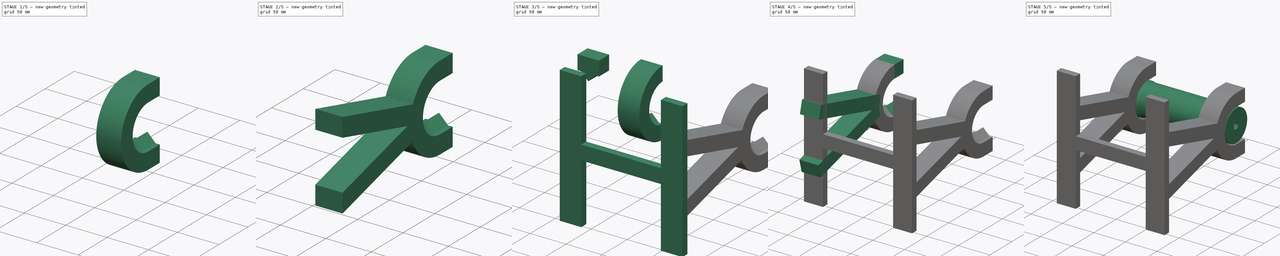
[diagram: build sequence overview — one tinted view per stage of 5, left to right]
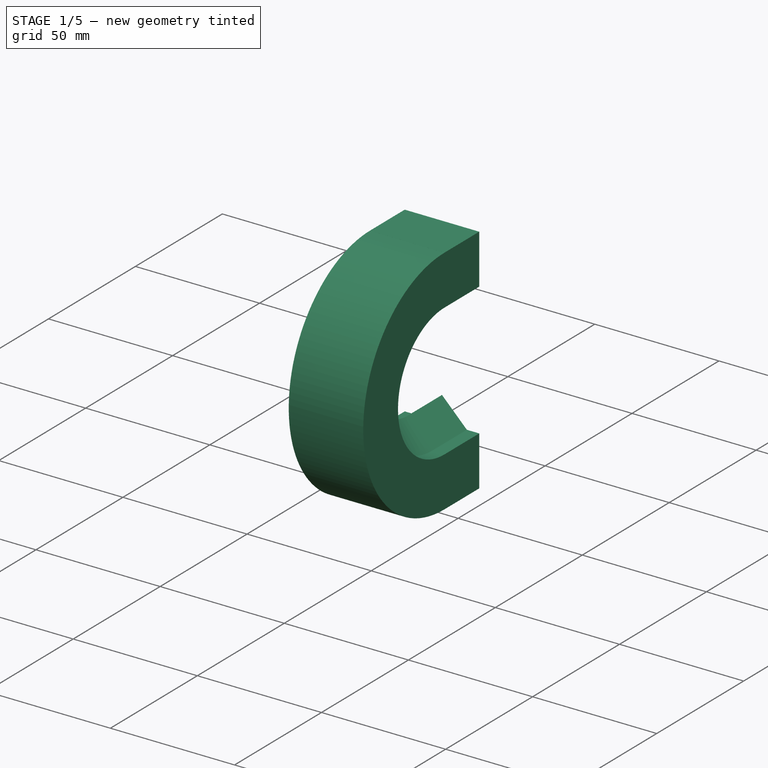
[diagram: stage 1 of 5 — iso view after this stage's code; geometry added in this stage tinted green]
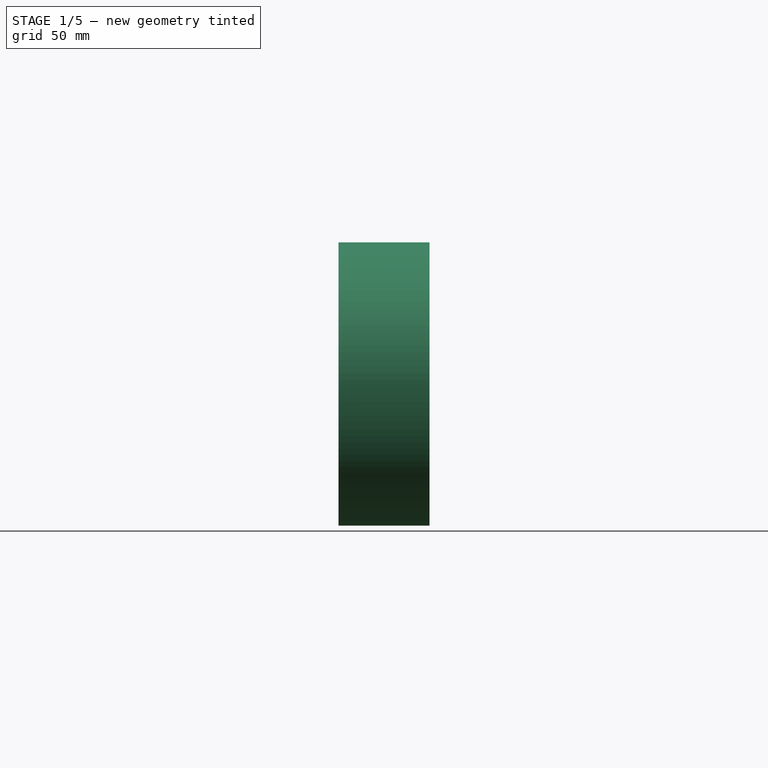
[diagram: stage 1 of 5 — front view after this stage's code; geometry added in this stage tinted green]
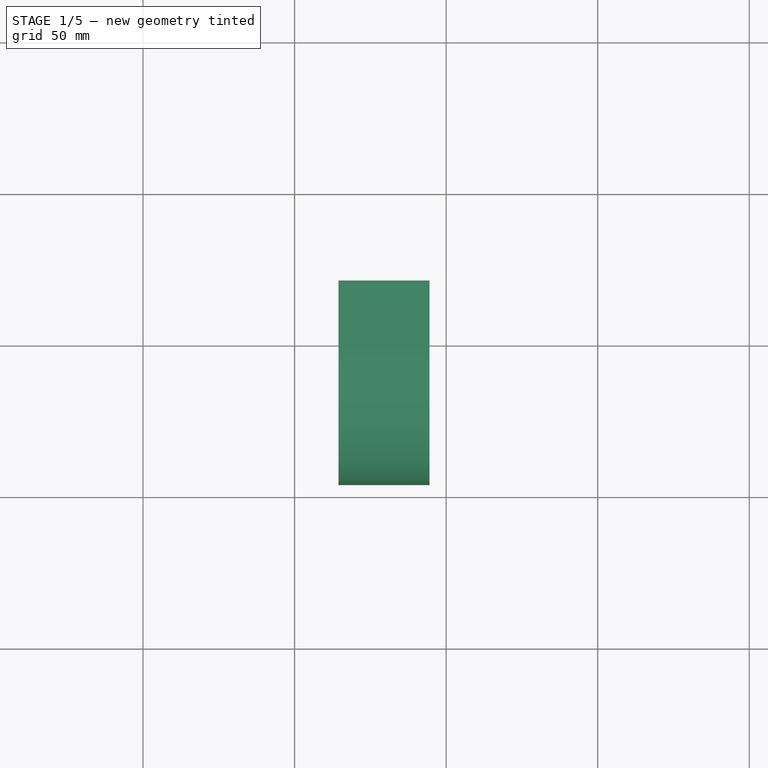
[diagram: stage 1 of 5 — top view after this stage's code; geometry added in this stage tinted green]
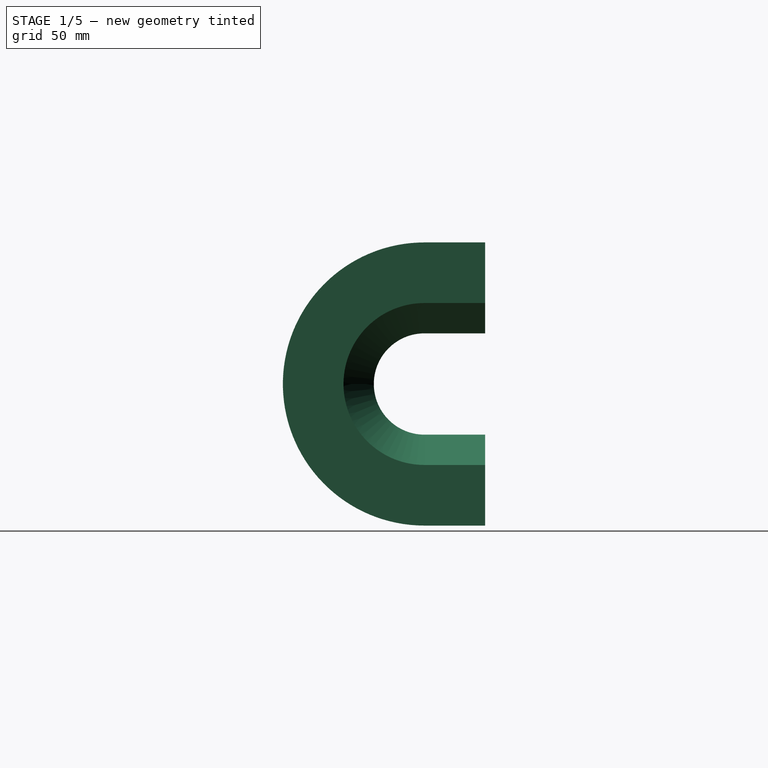
[diagram: stage 1 of 5 — right view after this stage's code; geometry added in this stage tinted green]
FCSTD DOCUMENT  (FreeCAD 0.20R29410 (Git))
Label: holder_big
License: All rights reserved
LicenseURL: http://en.wikipedia.org/wiki/All_rights_reserved
objects: Part::Box×9, Sketcher::SketchObject×7, PartDesign::Body×7, PartDesign::Pad×4, Part::Fuse×4, Part::MultiFuse×4, PartDesign::Revolution×3, Part::Cut×2
note: 47 computed .brp shape members not serialized (recipe doc carries the construction recipe); baked Part::Feature solids carry a one-line shape summary decoded from their .brp

FEATURE [Sketcher::SketchObject] Sketch010
  FullyConstrained = false
  MapMode = 5
  Placement = pos=(0,0,0) rot=(1,0,0;1.5708rad)
  Support = -> [XZ_Plane010]
  sketch-geometry (8):
    g0: LineSegment StartX=-85.5 StartY=26.7083 StartZ=0 EndX=-80.5 EndY=26.7083 EndZ=0
    g1: LineSegment StartX=-80.5 StartY=26.7083 StartZ=0 EndX=-70.5 EndY=16.7083 EndZ=0
    g2: LineSegment StartX=-70.5 StartY=16.7083 StartZ=0 EndX=-60.5 EndY=26.7083 EndZ=0
    g3: LineSegment StartX=-60.5 StartY=26.7083 StartZ=0 EndX=-55.5 EndY=26.7083 EndZ=0
    g4: LineSegment StartX=-85.5 StartY=26.7083 StartZ=0 EndX=-85.5 EndY=46.7083 EndZ=0
    g5: LineSegment StartX=-85.5 StartY=46.7083 StartZ=0 EndX=-55.5 EndY=46.7083 EndZ=0
    g6: LineSegment StartX=-55.5 StartY=46.7083 StartZ=0 EndX=-55.5 EndY=26.7083 EndZ=0
    g7: GeomPoint X=-70.5 Y=14.7083 Z=0
  constraints (19):
    c: Coincident(g2,g1)
    c: Parallel(g0,g-1)
    c: Parallel(g3,g-1)
    c: DistanceX(g0,g1) = 5
    c: DistanceX(g2,g3) = 5
    c: DistanceX(g1,g1) = 10
    c: DistanceX(g1,g2) = 10
    c: Coincident(g3,g2)
    c: Coincident(g1,g0)
    c: DistanceY(g1,g2) = 10
    c: DistanceY(g1,g0) = 10
    c: Coincident(g4,g0)
    c: Coincident(g6,g5)
    c: Coincident(g6,g3)
    c: Parallel(g4,g-2)
    c: Parallel(g5,g-1)
    c: Coincident(g5,g4)
    c: Parallel(g6,g-2)
    c: DistanceY(g3,g5) = 20
FEATURE [PartDesign::Revolution] Revolution004
  Angle = 180
  Axis = (1,0,0)
  Base = (0,0,0)
  Placement = pos=(0,0,0) rot=(1,0,0;1.5708rad)
  Profile = -> Sketch010
  ReferenceAxis = -> X_Axis010
FEATURE [PartDesign::Body] Body010
  Group = -> [Sketch010,Revolution004]
  Origin = -> Origin010
  Tip = -> Revolution004
FEATURE [Sketcher::SketchObject] Sketch011
  FullyConstrained = false
  MapMode = 5
  Placement = pos=(0,0,0) rot=(1,0,0;1.5708rad)
  Support = -> [XZ_Plane011]
  sketch-geometry (7):
    g0: LineSegment StartX=-160.154 StartY=40.5326 StartZ=0 EndX=-130.154 EndY=40.5326 EndZ=0
    g1: LineSegment StartX=-130.154 StartY=40.5326 StartZ=0 EndX=-130.154 EndY=20.5326 EndZ=0
    g2: LineSegment StartX=-130.154 StartY=20.5326 StartZ=0 EndX=-135.154 EndY=20.5326 EndZ=0
    g3: LineSegment StartX=-135.154 StartY=20.5326 StartZ=0 EndX=-145.154 EndY=10.5326 EndZ=0
    g4: LineSegment StartX=-145.154 StartY=10.5326 StartZ=0 EndX=-155.154 EndY=20.5326 EndZ=0
    g5: LineSegment StartX=-155.154 StartY=20.5326 StartZ=0 EndX=-160.154 EndY=20.5326 EndZ=0
    g6: LineSegment StartX=-160.154 StartY=20.5326 StartZ=0 EndX=-160.154 EndY=40.5326 EndZ=0
  constraints (19):
    c: Parallel(g0,g-1)
    c: Parallel(g5,g-1)
    c: Parallel(g2,g-1)
    c: Parallel(g6,g-2)
    c: Parallel(g1,g-2)
    c: Coincident(g6,g0)
    c: Coincident(g5,g6)
    c: Coincident(g3,g2)
    c: Coincident(g2,g1)
    c: Coincident(g5,g4)
    c: DistanceY(g1,g0) = 20
    c: DistanceY(g5,g0) = 20
    c: DistanceX(g5,g4) = 5
    c: DistanceX(g2,g1) = 5
    c: DistanceX(g4,g4) = 10
    c: DistanceX(g3,g2) = 10
    c: Coincident(g3,g4)
    c: DistanceY(g3,g2) = 10
    c: Coincident(g1,g0)
FEATURE [PartDesign::Pad] Pad006
  Direction = (0,-1,2e-16)
  Length = 20
  Length2 = 10
  Placement = pos=(0,0,0) rot=(1,0,0;1.5708rad)
  Profile = -> Sketch011
  ReferenceAxis = -> Sketch011 [N_Axis]
  Type = 0
FEATURE [PartDesign::Body] Body011
  Group = -> [Sketch011,Pad006]
  Origin = -> Origin011
  Placement = pos=(-215.65,20,-6.18) rot=(0,1,0;3.14159rad)
  Tip = -> Pad006
FEATURE [Part::Fuse] Fusion017
  Base = -> Body010
  Tool = -> Body011
FEATURE [Sketcher::SketchObject] Sketch012
  FullyConstrained = false
  MapMode = 5
  Placement = pos=(0,0,0) rot=(1,0,0;1.5708rad)
  Support = -> [XZ_Plane012]
  sketch-geometry (7):
    g0: LineSegment StartX=-160.154 StartY=40.5326 StartZ=0 EndX=-130.154 EndY=40.5326 EndZ=0
    g1: LineSegment StartX=-130.154 StartY=40.5326 StartZ=0 EndX=-130.154 EndY=20.5326 EndZ=0
    g2: LineSegment StartX=-130.154 StartY=20.5326 StartZ=0 EndX=-135.154 EndY=20.5326 EndZ=0
    g3: LineSegment StartX=-135.154 StartY=20.5326 StartZ=0 EndX=-145.154 EndY=10.5326 EndZ=0
    g4: LineSegment StartX=-145.154 StartY=10.5326 StartZ=0 EndX=-155.154 EndY=20.5326 EndZ=0
    g5: LineSegment StartX=-155.154 StartY=20.5326 StartZ=0 EndX=-160.154 EndY=20.5326 EndZ=0
    g6: LineSegment StartX=-160.154 StartY=20.5326 StartZ=0 EndX=-160.154 EndY=40.5326 EndZ=0
  constraints (19):
    c: Parallel(g0,g-1)
    c: Parallel(g5,g-1)
    c: Parallel(g2,g-1)
    c: Parallel(g6,g-2)
    c: Parallel(g1,g-2)
    c: Coincident(g6,g0)
    c: Coincident(g5,g6)
    c: Coincident(g3,g2)
    c: Coincident(g2,g1)
    c: Coincident(g5,g4)
    c: DistanceY(g1,g0) = 20
    c: DistanceY(g5,g0) = 20
    c: DistanceX(g5,g4) = 5
    c: DistanceX(g2,g1) = 5
    c: DistanceX(g4,g4) = 10
    c: DistanceX(g3,g2) = 10
    c: Coincident(g3,g4)
    c: DistanceY(g3,g2) = 10
    c: Coincident(g1,g0)
FEATURE [PartDesign::Pad] Pad007
  Direction = (0,-1,-2e-16)
  Length = 20
  Length2 = 10
  Placement = pos=(0,0,0) rot=(1,0,0;1.5708rad)
  Profile = -> Sketch012
  ReferenceAxis = -> Sketch012 [N_Axis]
  Type = 0
FEATURE [PartDesign::Body] Body012
  Group = -> [Sketch012,Pad007]
  Origin = -> Origin012
  Placement = pos=(74.65,20,6.18) rot=(0,0,1;0rad)
  Tip = -> Pad007
FEATURE [Part::Fuse] Fusion018
  Base = -> Body012
  Tool = -> Fusion017
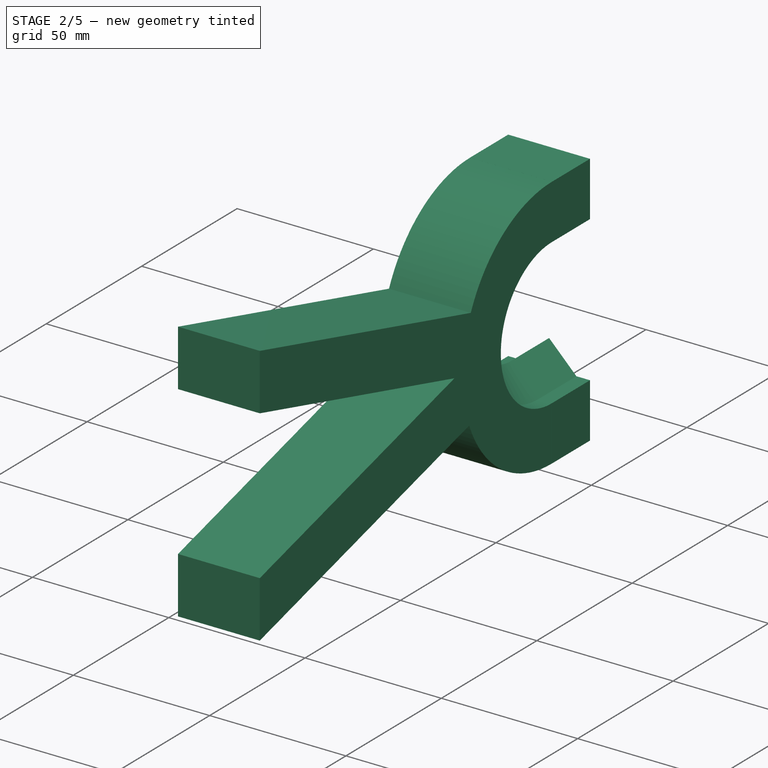
[diagram: stage 2 of 5 — iso view after this stage's code; geometry added in this stage tinted green]
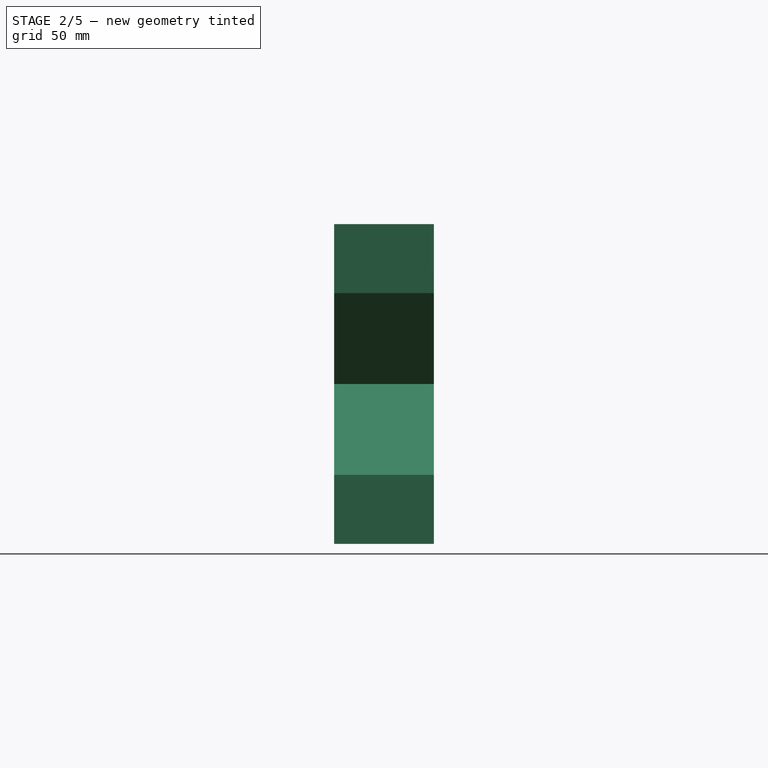
[diagram: stage 2 of 5 — front view after this stage's code; geometry added in this stage tinted green]
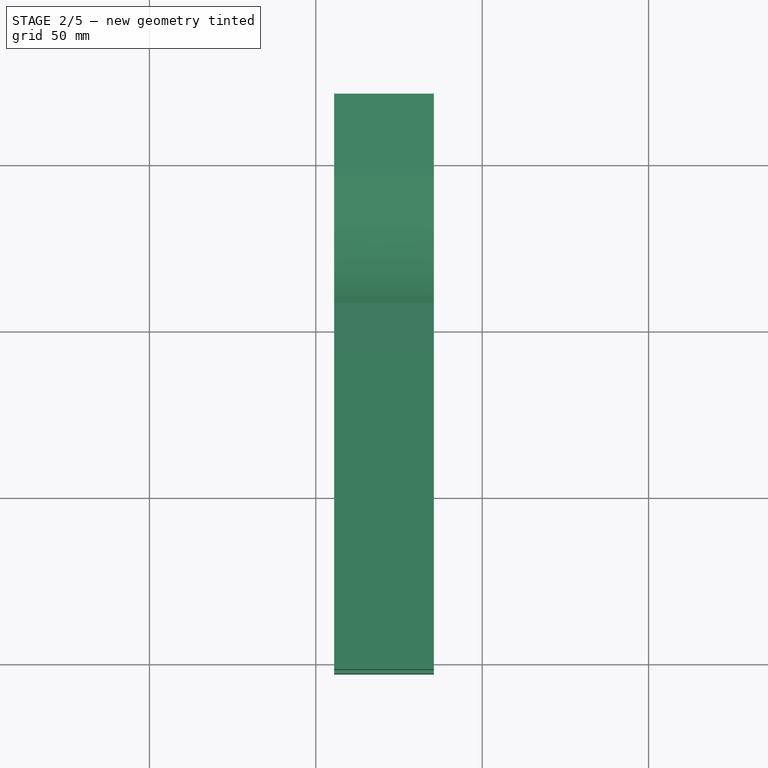
[diagram: stage 2 of 5 — top view after this stage's code; geometry added in this stage tinted green]
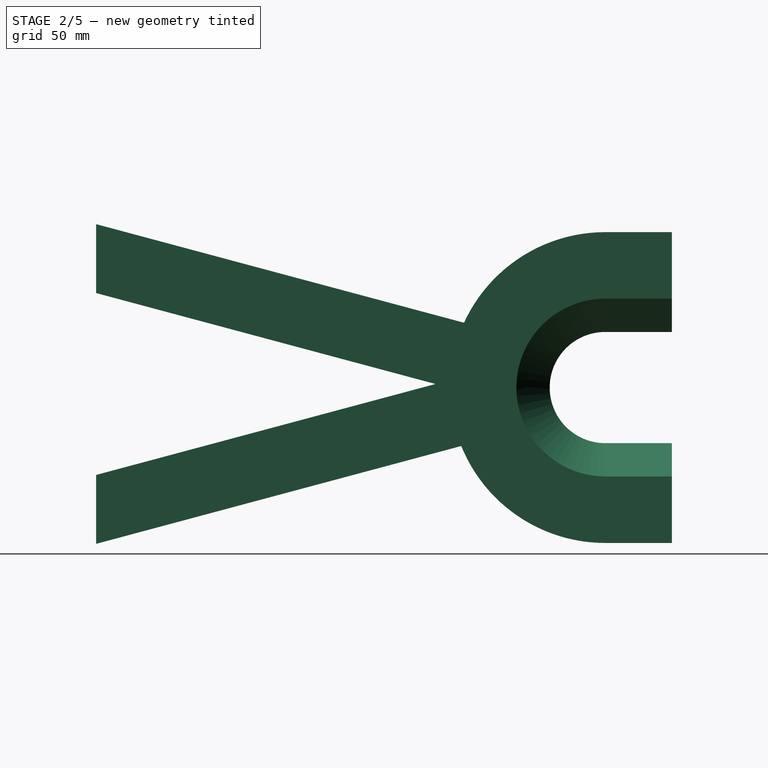
[diagram: stage 2 of 5 — right view after this stage's code; geometry added in this stage tinted green]
FEATURE [Part::Box] Box016  label="Cube016"
  AttacherType = Attacher::AttachEngine3D
  Height = 20
  Length = 30
  Placement = pos=(-85.5,-171.293,33.2952) rot=(-1,0,0;0.261799rad)
  Width = 140
FEATURE [Part::Box] Box017  label="Cube017"
  AttacherType = Attacher::AttachEngine3D
  Height = 20
  Length = 30
  Placement = pos=(-85.5,-167.263,-50.7868) rot=(1,0,0;0.261799rad)
  Width = 140
FEATURE [Part::Box] Box018  label="Cube018"
  AttacherType = Attacher::AttachEngine3D
  Height = 220
  Length = 40
  Placement = pos=(-94,-173,-109) rot=(0,0,1;0rad)
  Width = 20
FEATURE [Part::MultiFuse] Fusion019
  Shapes = -> [Fusion018,Box017,Box016]
FEATURE [Part::Cut] Cut002
  Base = -> Fusion019
  Placement = pos=(141,0,0) rot=(0,0,1;0rad)
  Tool = -> Box018
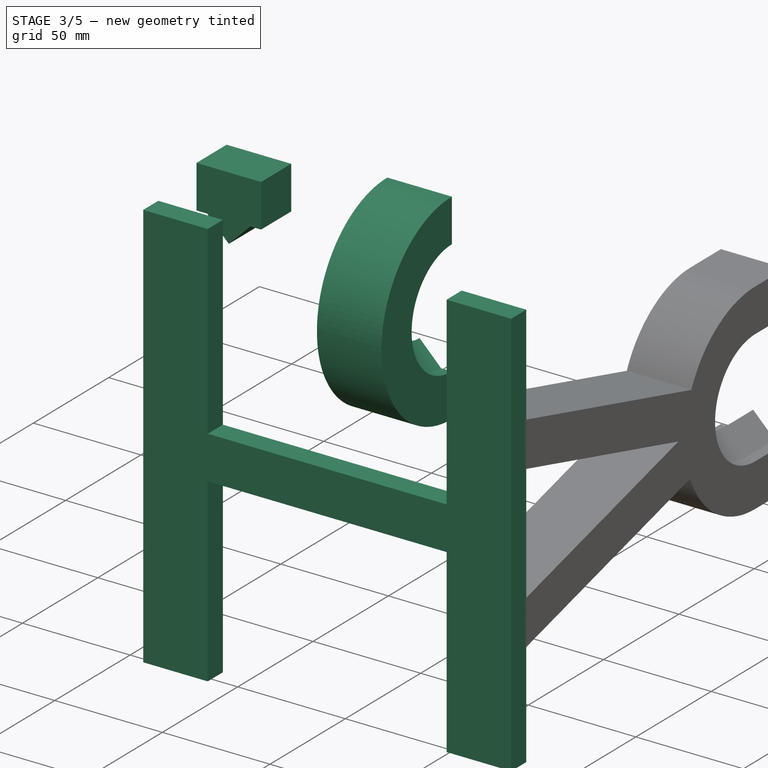
[diagram: stage 3 of 5 — iso view after this stage's code; geometry added in this stage tinted green]
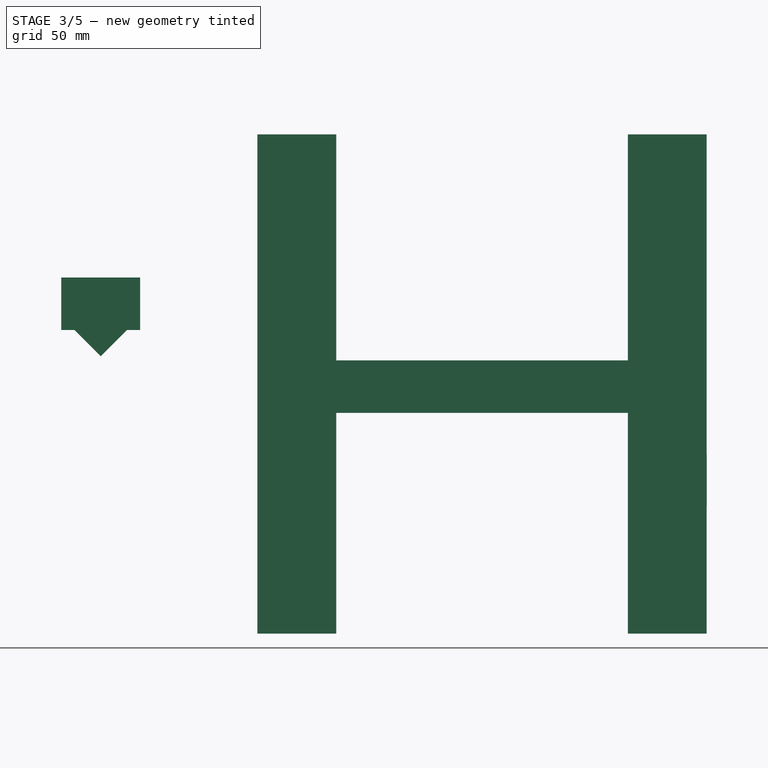
[diagram: stage 3 of 5 — front view after this stage's code; geometry added in this stage tinted green]
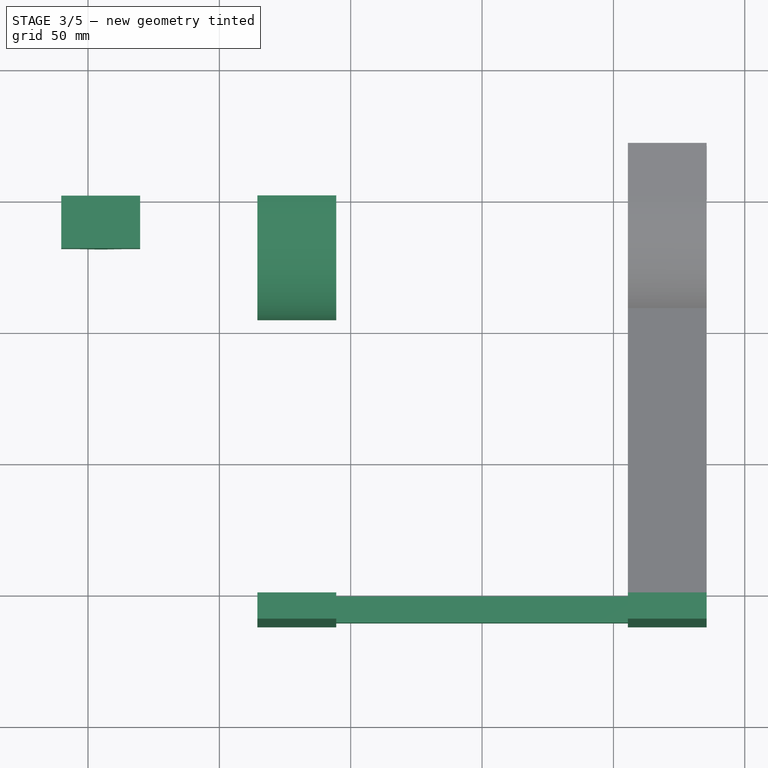
[diagram: stage 3 of 5 — top view after this stage's code; geometry added in this stage tinted green]
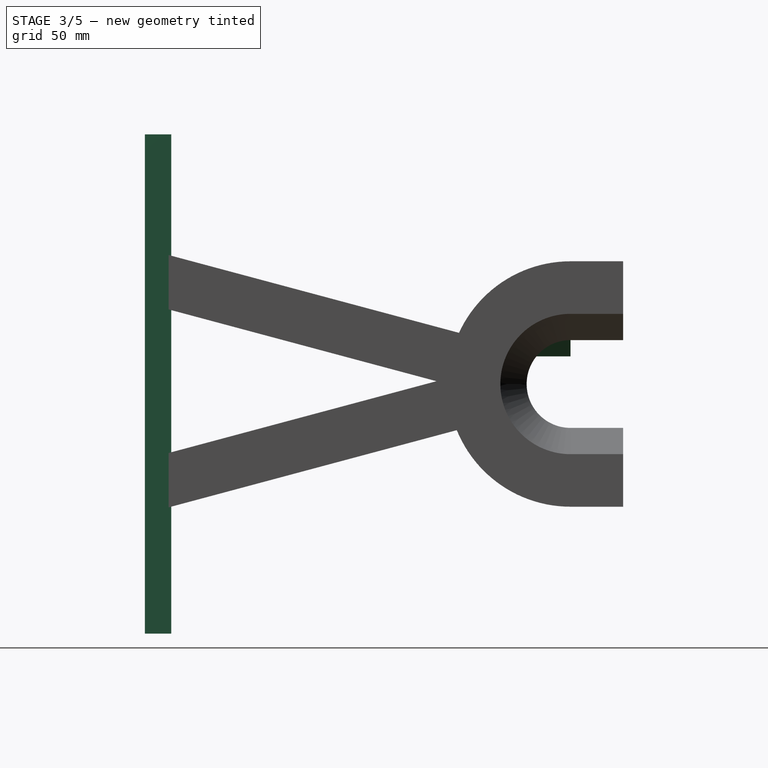
[diagram: stage 3 of 5 — right view after this stage's code; geometry added in this stage tinted green]
FEATURE [PartDesign::Body] Body  label="inner"
  Group = -> [Sketch,Revolution]
  Origin = -> Origin
  Tip = -> Revolution
FEATURE [Part::Box] Box004  label="Cube004"
  AttacherType = Attacher::AttachEngine3D
  Height = 190
  Length = 30
  Placement = pos=(-85.5,-173,-95) rot=(0,0,1;0rad)
  Width = 10
FEATURE [Part::Box] Box009  label="Cube009"
  AttacherType = Attacher::AttachEngine3D
  Height = 190
  Length = 30
  Placement = pos=(55.5,-173,-95) rot=(0,0,1;0rad)
  Width = 10
FEATURE [Part::Box] Box011  label="Cube011"
  AttacherType = Attacher::AttachEngine3D
  Height = 20
  Length = 130
  Placement = pos=(-63,-173,-11) rot=(0,0,1;0rad)
  Width = 10
FEATURE [Sketcher::SketchObject] Sketch007
  FullyConstrained = false
  MapMode = 5
  Placement = pos=(0,0,0) rot=(1,0,0;1.5708rad)
  Support = -> [XZ_Plane007]
  sketch-geometry (8):
    g0: LineSegment StartX=-85.5 StartY=26.7083 StartZ=0 EndX=-80.5 EndY=26.7083 EndZ=0
    g1: LineSegment StartX=-80.5 StartY=26.7083 StartZ=0 EndX=-70.5 EndY=16.7083 EndZ=0
    g2: LineSegment StartX=-70.5 StartY=16.7083 StartZ=0 EndX=-60.5 EndY=26.7083 EndZ=0
    g3: LineSegment StartX=-60.5 StartY=26.7083 StartZ=0 EndX=-55.5 EndY=26.7083 EndZ=0
    g4: LineSegment StartX=-85.5 StartY=26.7083 StartZ=0 EndX=-85.5 EndY=46.7083 EndZ=0
    g5: LineSegment StartX=-85.5 StartY=46.7083 StartZ=0 EndX=-55.5 EndY=46.7083 EndZ=0
    g6: LineSegment StartX=-55.5 StartY=46.7083 StartZ=0 EndX=-55.5 EndY=26.7083 EndZ=0
    g7: GeomPoint X=-70.5 Y=14.7083 Z=0
  constraints (19):
    c: Coincident(g2,g1)
    c: Parallel(g0,g-1)
    c: Parallel(g3,g-1)
    c: DistanceX(g0,g1) = 5
    c: DistanceX(g2,g3) = 5
    c: DistanceX(g1,g1) = 10
    c: DistanceX(g1,g2) = 10
    c: Coincident(g3,g2)
    c: Coincident(g1,g0)
    c: DistanceY(g1,g2) = 10
    c: DistanceY(g1,g0) = 10
    c: Coincident(g4,g0)
    c: Coincident(g6,g5)
    c: Coincident(g6,g3)
    c: Parallel(g4,g-2)
    c: Parallel(g5,g-1)
    c: Coincident(g5,g4)
    c: Parallel(g6,g-2)
    c: DistanceY(g3,g5) = 20
FEATURE [PartDesign::Revolution] Revolution003
  Angle = 180
  Axis = (1,0,0)
  Base = (0,0,0)
  Placement = pos=(0,0,0) rot=(1,0,0;1.5708rad)
  Profile = -> Sketch007
  ReferenceAxis = -> X_Axis007
FEATURE [Sketcher::SketchObject] Sketch009
  FullyConstrained = false
  MapMode = 5
  Placement = pos=(0,0,0) rot=(1,0,0;1.5708rad)
  Support = -> [XZ_Plane009]
  sketch-geometry (7):
    g0: LineSegment StartX=-160.154 StartY=40.5326 StartZ=0 EndX=-130.154 EndY=40.5326 EndZ=0
    g1: LineSegment StartX=-130.154 StartY=40.5326 StartZ=0 EndX=-130.154 EndY=20.5326 EndZ=0
    g2: LineSegment StartX=-130.154 StartY=20.5326 StartZ=0 EndX=-135.154 EndY=20.5326 EndZ=0
    g3: LineSegment StartX=-135.154 StartY=20.5326 StartZ=0 EndX=-145.154 EndY=10.5326 EndZ=0
    g4: LineSegment StartX=-145.154 StartY=10.5326 StartZ=0 EndX=-155.154 EndY=20.5326 EndZ=0
    g5: LineSegment StartX=-155.154 StartY=20.5326 StartZ=0 EndX=-160.154 EndY=20.5326 EndZ=0
    g6: LineSegment StartX=-160.154 StartY=20.5326 StartZ=0 EndX=-160.154 EndY=40.5326 EndZ=0
  constraints (19):
    c: Parallel(g0,g-1)
    c: Parallel(g5,g-1)
    c: Parallel(g2,g-1)
    c: Parallel(g6,g-2)
    c: Parallel(g1,g-2)
    c: Coincident(g6,g0)
    c: Coincident(g5,g6)
    c: Coincident(g3,g2)
    c: Coincident(g2,g1)
    c: Coincident(g5,g4)
    c: DistanceY(g1,g0) = 20
    c: DistanceY(g5,g0) = 20
    c: DistanceX(g5,g4) = 5
    c: DistanceX(g2,g1) = 5
    c: DistanceX(g4,g4) = 10
    c: DistanceX(g3,g2) = 10
    c: Coincident(g3,g4)
    c: DistanceY(g3,g2) = 10
    c: Coincident(g1,g0)
FEATURE [PartDesign::Pad] Pad005
  Direction = (0,-1,-2e-16)
  Length = 20
  Length2 = 10
  Placement = pos=(0,0,0) rot=(1,0,0;1.5708rad)
  Profile = -> Sketch009
  ReferenceAxis = -> Sketch009 [N_Axis]
  Type = 0
FEATURE [Part::MultiFuse] Fusion
  Placement = pos=(0,11,0) rot=(0,0,1;0rad)
  Shapes = -> [Box011,Box009,Box004]
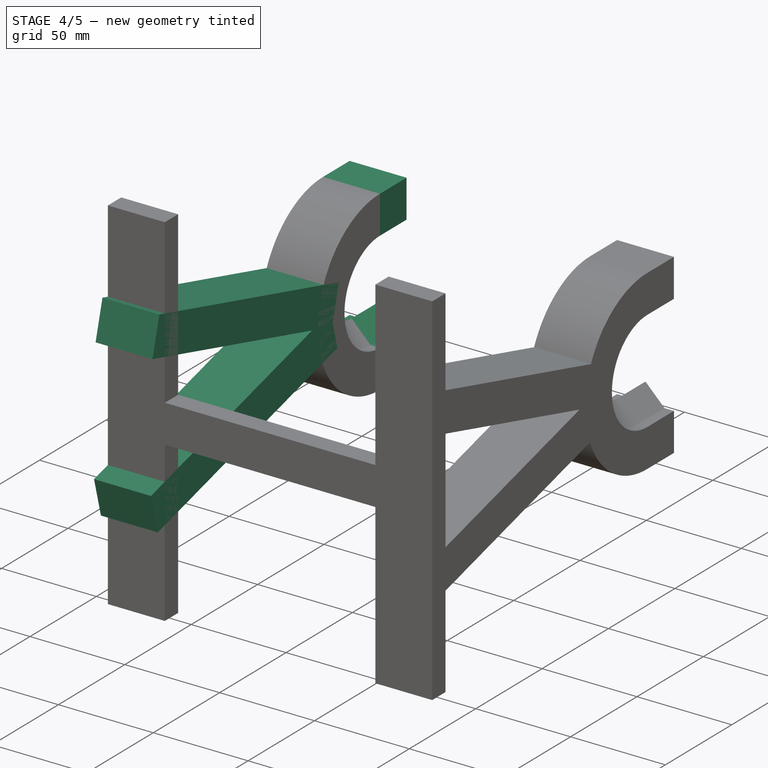
[diagram: stage 4 of 5 — iso view after this stage's code; geometry added in this stage tinted green]
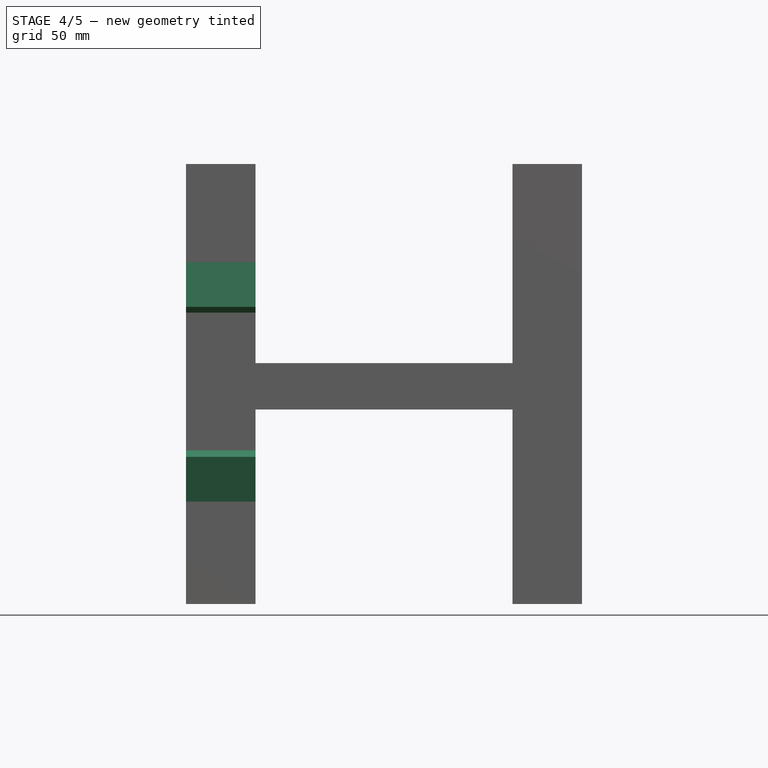
[diagram: stage 4 of 5 — front view after this stage's code; geometry added in this stage tinted green]
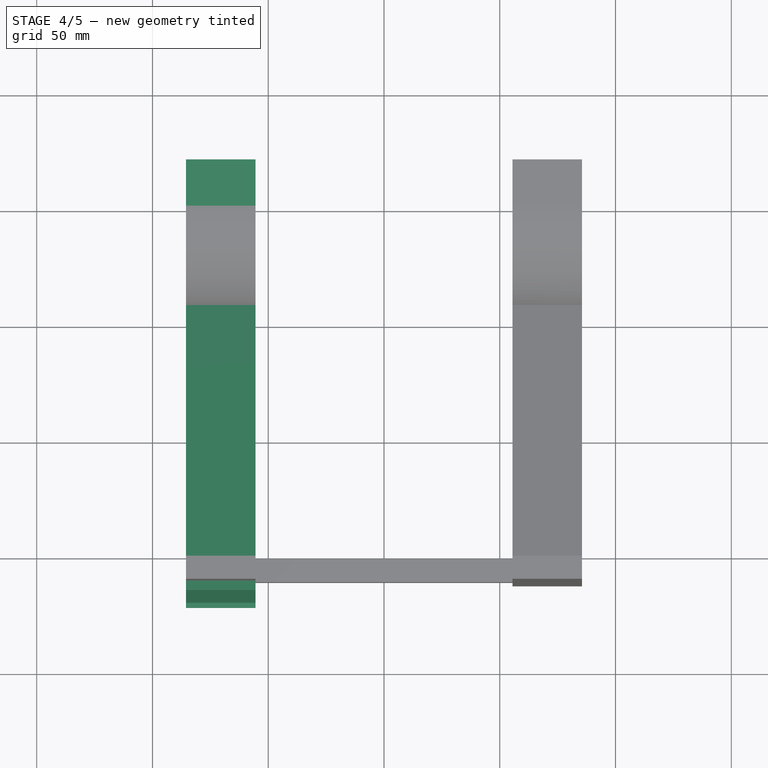
[diagram: stage 4 of 5 — top view after this stage's code; geometry added in this stage tinted green]
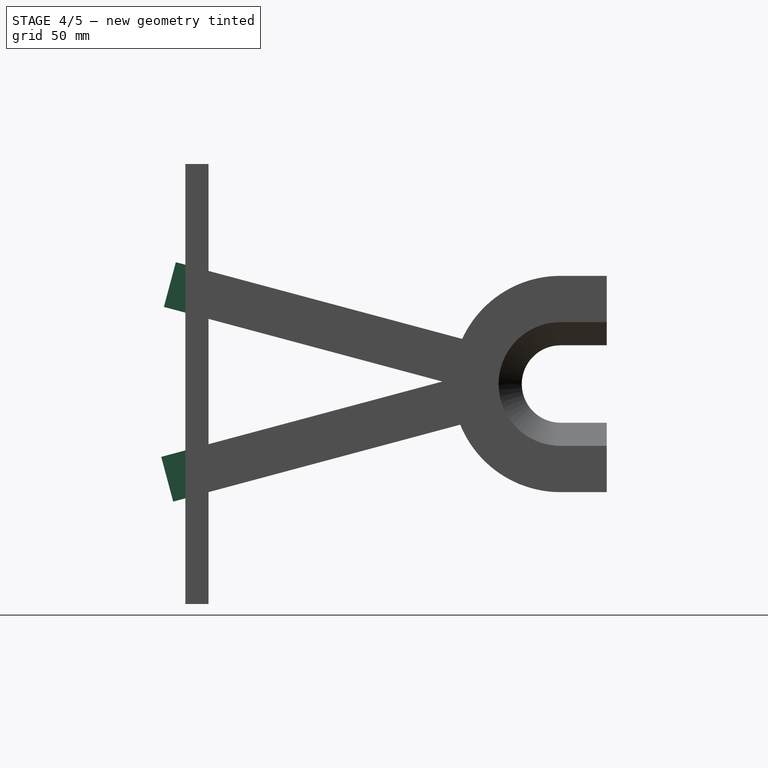
[diagram: stage 4 of 5 — right view after this stage's code; geometry added in this stage tinted green]
FEATURE [Part::Box] Box013  label="Cube013"
  AttacherType = Attacher::AttachEngine3D
  Height = 20
  Length = 30
  Placement = pos=(-85.5,-171.293,33.2952) rot=(-1,0,0;0.261799rad)
  Width = 140
FEATURE [Part::Box] Box014  label="Cube014"
  AttacherType = Attacher::AttachEngine3D
  Height = 20
  Length = 30
  Placement = pos=(-85.5,-167.263,-50.7868) rot=(1,0,0;0.261799rad)
  Width = 140
FEATURE [PartDesign::Body] Body007
  Group = -> [Sketch007,Revolution003]
  Origin = -> Origin007
  Tip = -> Revolution003
FEATURE [Sketcher::SketchObject] Sketch008
  FullyConstrained = false
  MapMode = 5
  Placement = pos=(0,0,0) rot=(1,0,0;1.5708rad)
  Support = -> [XZ_Plane008]
  sketch-geometry (7):
    g0: LineSegment StartX=-160.154 StartY=40.5326 StartZ=0 EndX=-130.154 EndY=40.5326 EndZ=0
    g1: LineSegment StartX=-130.154 StartY=40.5326 StartZ=0 EndX=-130.154 EndY=20.5326 EndZ=0
    g2: LineSegment StartX=-130.154 StartY=20.5326 StartZ=0 EndX=-135.154 EndY=20.5326 EndZ=0
    g3: LineSegment StartX=-135.154 StartY=20.5326 StartZ=0 EndX=-145.154 EndY=10.5326 EndZ=0
    g4: LineSegment StartX=-145.154 StartY=10.5326 StartZ=0 EndX=-155.154 EndY=20.5326 EndZ=0
    g5: LineSegment StartX=-155.154 StartY=20.5326 StartZ=0 EndX=-160.154 EndY=20.5326 EndZ=0
    g6: LineSegment StartX=-160.154 StartY=20.5326 StartZ=0 EndX=-160.154 EndY=40.5326 EndZ=0
  constraints (19):
    c: Parallel(g0,g-1)
    c: Parallel(g5,g-1)
    c: Parallel(g2,g-1)
    c: Parallel(g6,g-2)
    c: Parallel(g1,g-2)
    c: Coincident(g6,g0)
    c: Coincident(g5,g6)
    c: Coincident(g3,g2)
    c: Coincident(g2,g1)
    c: Coincident(g5,g4)
    c: DistanceY(g1,g0) = 20
    c: DistanceY(g5,g0) = 20
    c: DistanceX(g5,g4) = 5
    c: DistanceX(g2,g1) = 5
    c: DistanceX(g4,g4) = 10
    c: DistanceX(g3,g2) = 10
    c: Coincident(g3,g4)
    c: DistanceY(g3,g2) = 10
    c: Coincident(g1,g0)
FEATURE [PartDesign::Pad] Pad004
  Direction = (0,-1,2e-16)
  Length = 20
  Length2 = 10
  Placement = pos=(0,0,0) rot=(1,0,0;1.5708rad)
  Profile = -> Sketch008
  ReferenceAxis = -> Sketch008 [N_Axis]
  Type = 0
FEATURE [PartDesign::Body] Body008
  Group = -> [Sketch008,Pad004]
  Origin = -> Origin008
  Placement = pos=(-215.65,20,-6.18) rot=(0,1,0;3.14159rad)
  Tip = -> Pad004
FEATURE [Part::Fuse] Fusion010
  Base = -> Body007
  Tool = -> Body008
FEATURE [PartDesign::Body] Body009
  Group = -> [Sketch009,Pad005]
  Origin = -> Origin009
  Placement = pos=(74.65,20,6.18) rot=(0,0,1;0rad)
  Tip = -> Pad005
FEATURE [Part::Fuse] Fusion011
  Base = -> Body009
  Tool = -> Fusion010
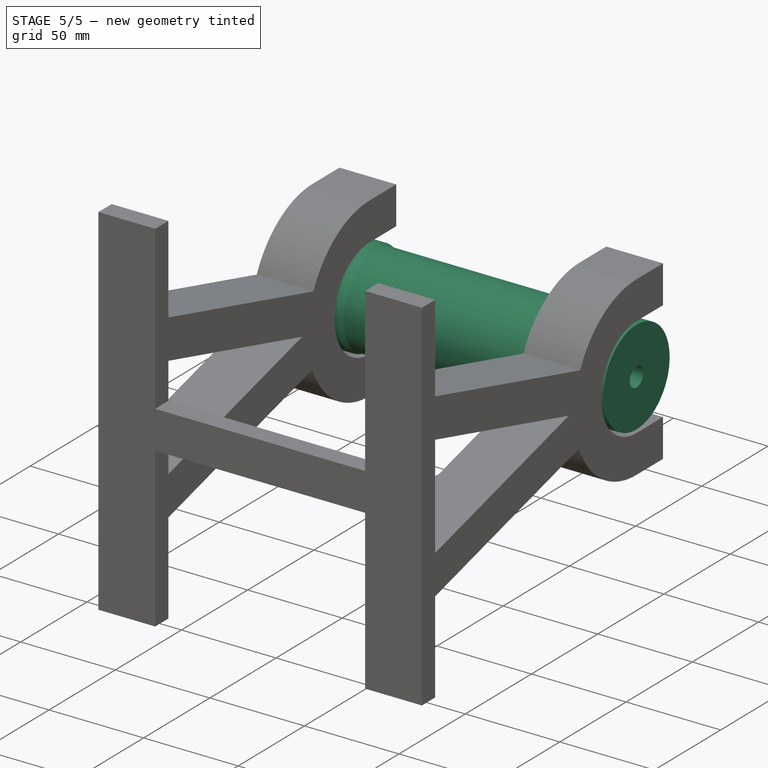
[diagram: stage 5 of 5 — iso view after this stage's code; geometry added in this stage tinted green]
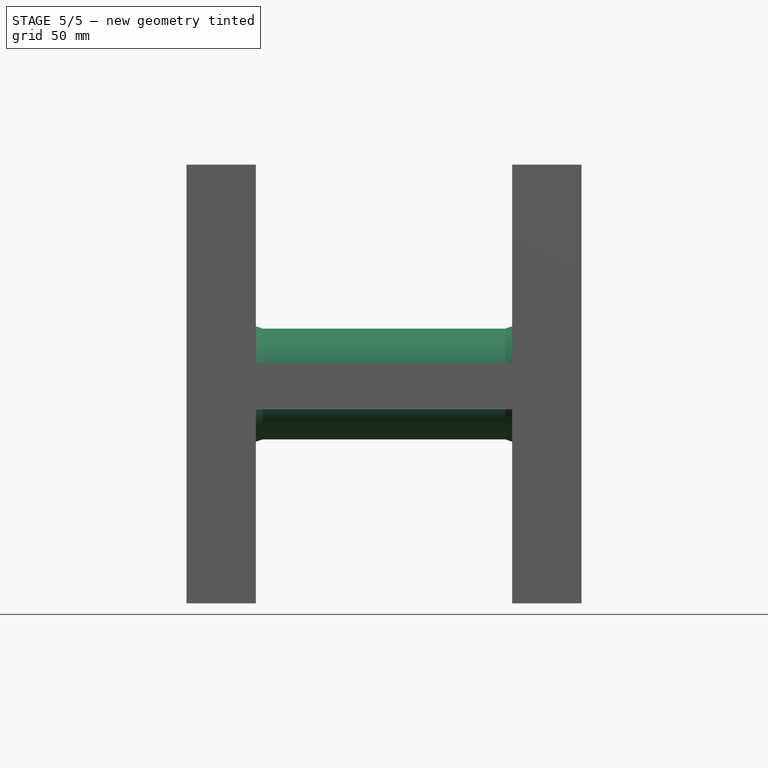
[diagram: stage 5 of 5 — front view after this stage's code; geometry added in this stage tinted green]
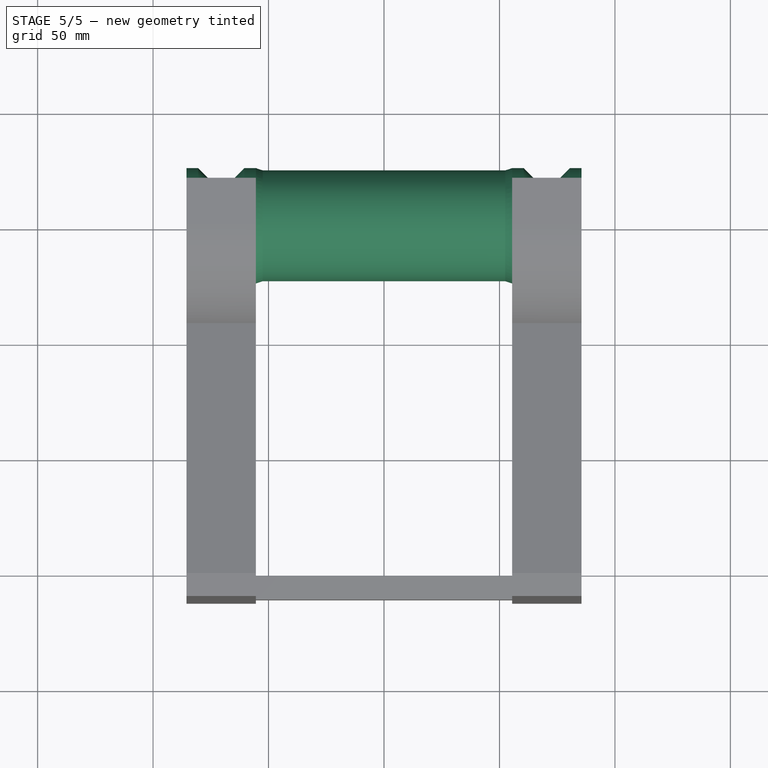
[diagram: stage 5 of 5 — top view after this stage's code; geometry added in this stage tinted green]
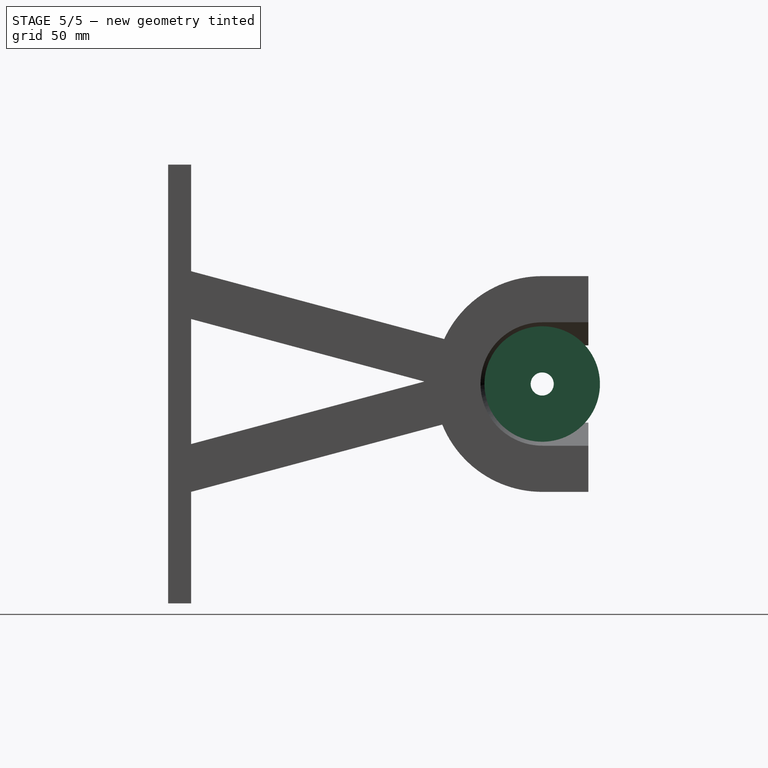
[diagram: stage 5 of 5 — right view after this stage's code; geometry added in this stage tinted green]
FEATURE [Sketcher::SketchObject] Sketch
  FullyConstrained = true
  MapMode = 5
  Placement = pos=(0,0,0) rot=(1,0,0;1.5708rad)
  Support = -> [XZ_Plane]
  sketch-geometry (14):
    g0: LineSegment StartX=-52.5 StartY=24 StartZ=0 EndX=52.5 EndY=24 EndZ=0
    g1: LineSegment StartX=-60.5 StartY=25 StartZ=0 EndX=-55.5 EndY=25 EndZ=0
    g2: LineSegment StartX=-55.5 StartY=25 StartZ=0 EndX=-52.5 EndY=24 EndZ=0
    g3: LineSegment StartX=55.5 StartY=25 StartZ=0 EndX=60.5 EndY=25 EndZ=0
    g4: LineSegment StartX=52.5 StartY=24 StartZ=0 EndX=55.5 EndY=25 EndZ=0
    g5: LineSegment StartX=-60.5 StartY=25 StartZ=0 EndX=-70.5 EndY=15 EndZ=0
    g6: LineSegment StartX=-70.5 StartY=15 StartZ=0 EndX=-80.5 EndY=25 EndZ=0
    g7: LineSegment StartX=-80.5 StartY=25 StartZ=0 EndX=-85.5 EndY=25 EndZ=0
    g8: LineSegment StartX=-85.5 StartY=25 StartZ=0 EndX=-85.5 EndY=5 EndZ=0
    g9: LineSegment StartX=60.5 StartY=25 StartZ=0 EndX=70.5 EndY=15 EndZ=0
    g10: LineSegment StartX=70.5 StartY=15 StartZ=0 EndX=80.5 EndY=25 EndZ=0
    g11: LineSegment StartX=85.5 StartY=25 StartZ=0 EndX=80.5 EndY=25 EndZ=0
    g12: LineSegment StartX=85.5 StartY=25 StartZ=0 EndX=85.5 EndY=5 EndZ=0
    g13: LineSegment StartX=-85.5 StartY=5 StartZ=0 EndX=85.5 EndY=5 EndZ=0
  constraints (41):
    c: DistanceY(g-1,g0) = 24
    c: DistanceX(g0,g0) = 105
    c: Symmetric(g0,g0,g-2)
    c: Parallel(g1,g-1)
    c: DistanceX(g1,g1) = 5
    c: DistanceY(g-1,g1) = 25
    c: Coincident(g2,g1)
    c: Coincident(g2,g0)
    c: DistanceX(g3,g3) = 5
    c: DistanceY(g3) = 25
    c: Parallel(g3,g-1)
    c: Coincident(g4,g0)
    c: Coincident(g4,g3)
    c: DistanceX(g1,g0) = 3
    c: DistanceX(g0,g3) = 3
    c: Coincident(g5,g1)
    c: Coincident(g6,g5)
    c: Coincident(g9,g3)
    c: DistanceY(g-1,g5) = 15
    c: DistanceY(g-1,g10) = 15
    c: Coincident(g9,g10)
    c: DistanceX(g5,g1) = 10
    c: DistanceX(g3,g9) = 10
    c: DistanceX(g11,g11) = 5
    c: DistanceX(g9,g10) = 10
    c: DistanceX(g7,g7) = 5
    c: DistanceX(g6,g5) = 10
    c: Coincident(g7,g6)
    c: Coincident(g11,g10)
    c: Coincident(g12,g11)
    c: Coincident(g8,g7)
    c: Parallel(g7,g-1)
    c: Parallel(g11,g-1)
    c: Parallel(g8,g-2)
    c: Parallel(g12,g-2)
    c: DistanceY(g5,g6) = 10
    c: DistanceY(g9,g10) = 10
    c: DistanceY(g12,g11) = 20
    c: DistanceY(g8,g7) = 20
    c: Coincident(g13,g8)
    c: Coincident(g13,g12)
FEATURE [PartDesign::Revolution] Revolution
  Angle = 360
  Axis = (1,0,0)
  Base = (0,0,0)
  Placement = pos=(0,0,0) rot=(1,0,0;1.5708rad)
  Profile = -> Sketch
  ReferenceAxis = -> X_Axis
FEATURE [Part::Box] Box015  label="Cube015"
  AttacherType = Attacher::AttachEngine3D
  Height = 220
  Length = 40
  Placement = pos=(-94,-173,-109) rot=(0,0,1;0rad)
  Width = 20
FEATURE [Part::MultiFuse] Fusion016
  Shapes = -> [Fusion011,Box014,Box013]
FEATURE [Part::Cut] Cut001
  Base = -> Fusion016
  Tool = -> Box015
FEATURE [Part::MultiFuse] Fusion020
  Shapes = -> [Cut001,Fusion,Cut002]
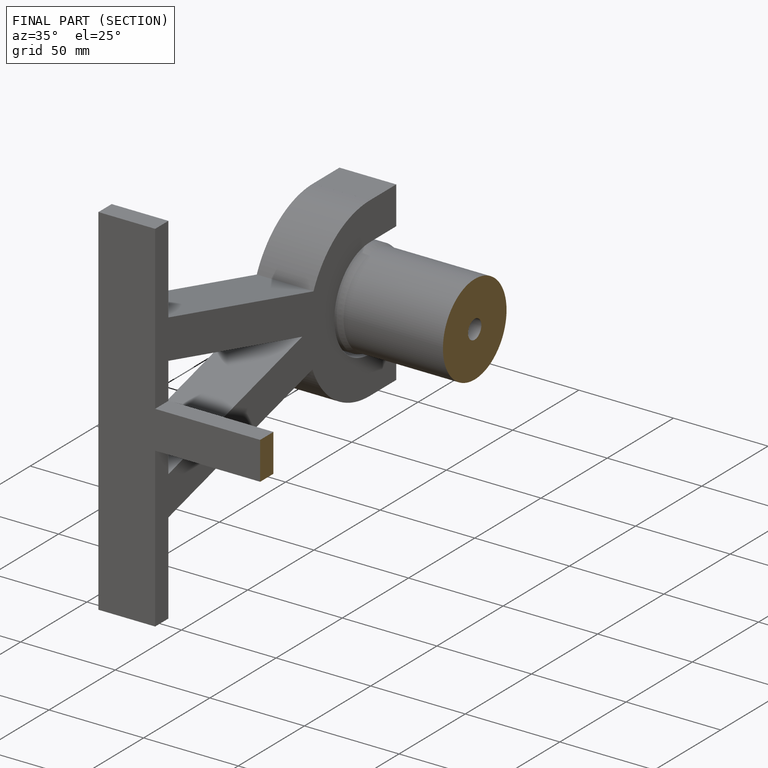
[diagram: finished part — half-section view (interior)]
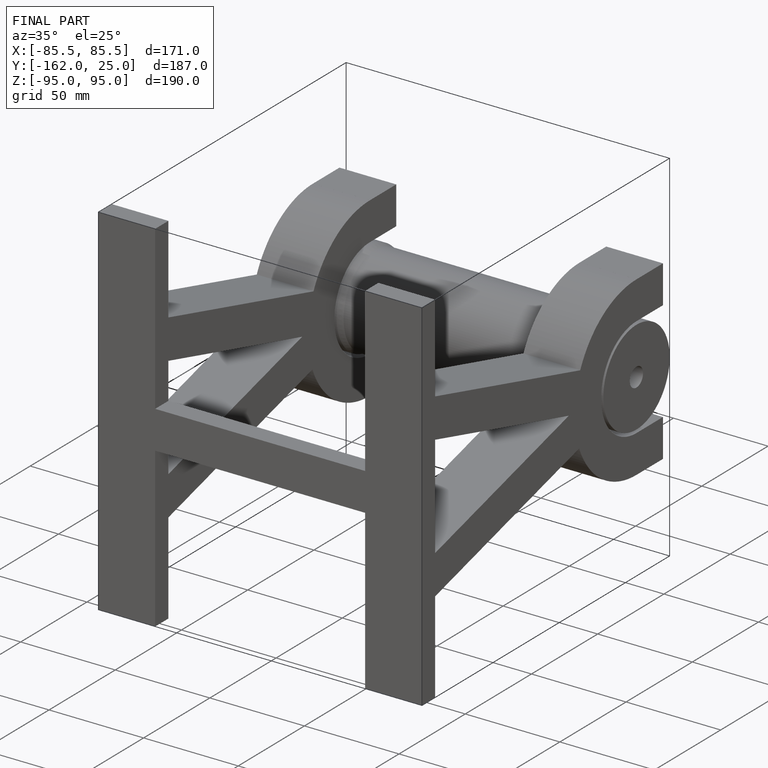
[diagram: finished part — iso view with bounding-box wireframe]
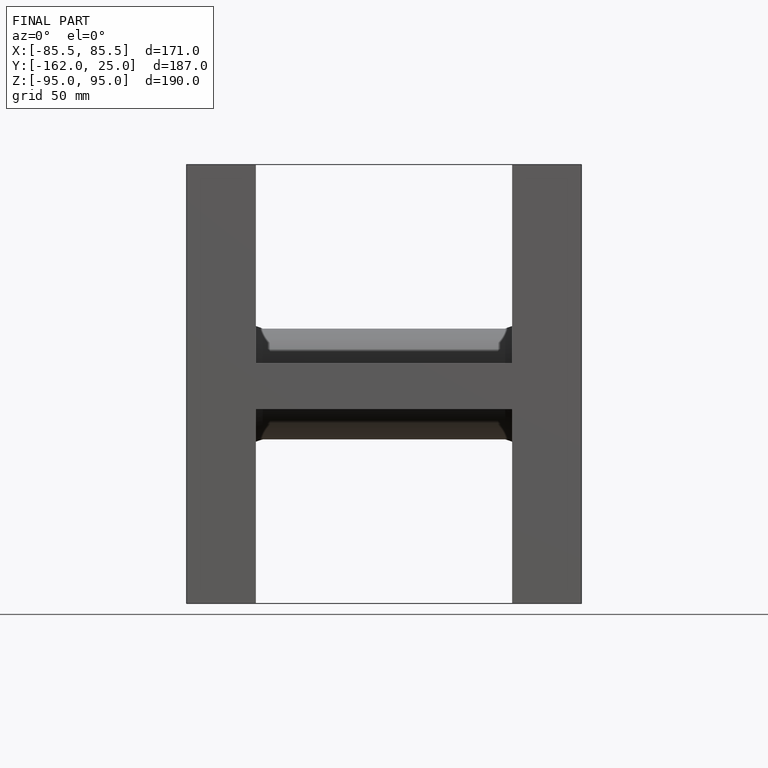
[diagram: finished part — front view with bounding-box wireframe]
